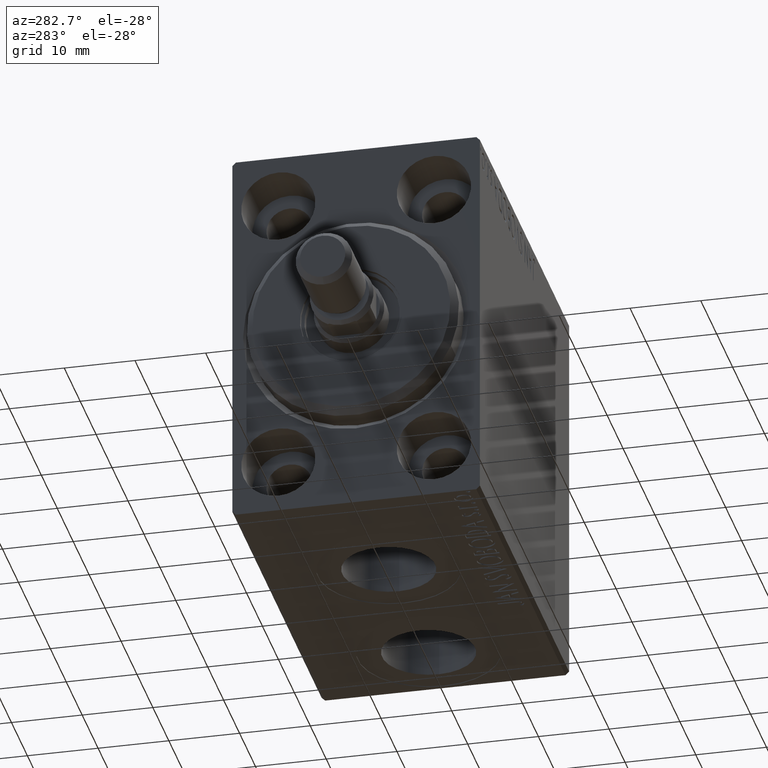
[diagram: clean part render]
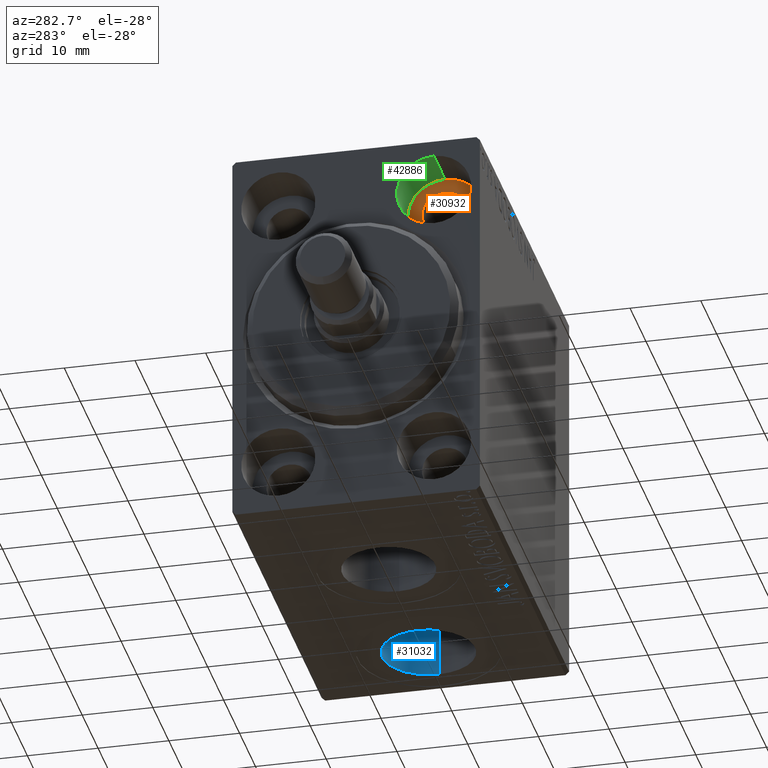
[diagram: same view with three faces highlighted in distinct colors, each labeled with its STEP entity id]
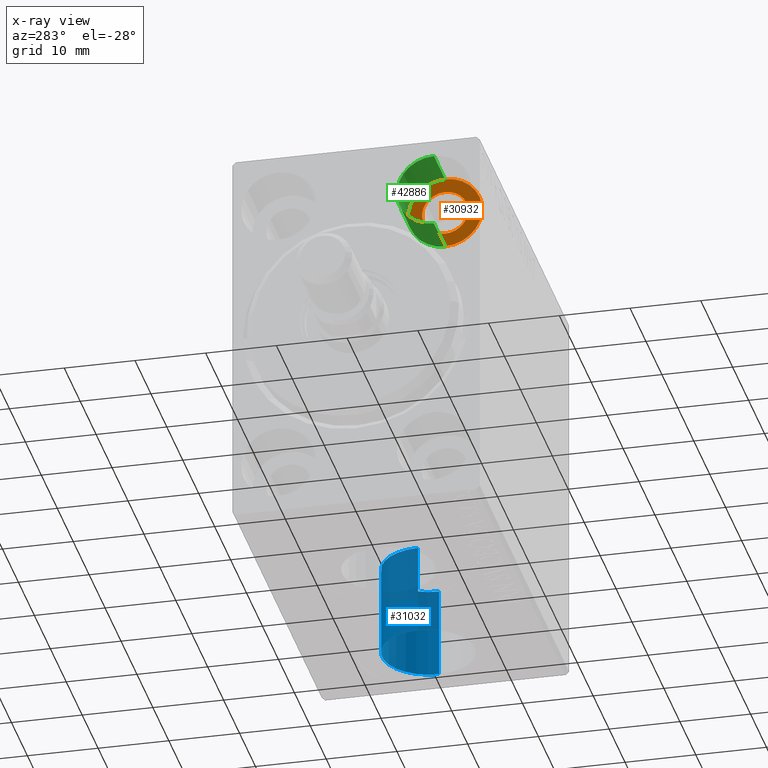
[diagram: x-ray of the same camera — body ghosted, the three highlighted faces saturated]
A machine part, auxiliary view with three faces highlighted in distinct colors.
The next image is the same camera in x-ray (body ghosted, the three faces saturated) — at least one of them is partly hidden behind the body in this view.
Their STEP definitions:

[orange] entity #30932 — the highlighted planar face has unit normal (-1, 0, 0).
#2447 = DIRECTION ( 'NONE',  ( -1.000000000000000000, 0.000000000000000000, 0.000000000000000000 ) ) ;
#3005 = PLANE ( 'NONE',  #9919 ) ;
#3781 = EDGE_LOOP ( 'NONE', ( #32650, #44393 ) ) ;
#5532 = DIRECTION ( 'NONE',  ( -1.000000000000000000, 0.000000000000000000, 0.000000000000000000 ) ) ;
#5815 = EDGE_LOOP ( 'NONE', ( #31413, #21490 ) ) ;
#7081 = FACE_BOUND ( 'NONE', #3781, .T. ) ;
#7377 = CIRCLE ( 'NONE', #44009, 3.249999999999999556 ) ;
#9919 = AXIS2_PLACEMENT_3D ( 'NONE', #30485, #37460, #17865 ) ;
#13901 = VERTEX_POINT ( 'NONE', #16427 ) ;
#16427 = CARTESIAN_POINT ( 'NONE',  ( 6.999999999999999112, -11.00000000000000355, 23.25000000000000000 ) ) ;
#17865 = DIRECTION ( 'NONE',  ( 0.000000000000000000, 0.000000000000000000, 1.000000000000000000 ) ) ;
#18636 = CIRCLE ( 'NONE', #21515, 3.249999999999999556 ) ;
#19031 = CARTESIAN_POINT ( 'NONE',  ( 7.000000000000000000, -11.00000000000000355, 20.00000000000000000 ) ) ;
#20898 = DIRECTION ( 'NONE',  ( 0.000000000000000000, 0.000000000000000000, 1.000000000000000000 ) ) ;
#21320 = CIRCLE ( 'NONE', #41435, 5.250000000000000888 ) ;
#21490 = ORIENTED_EDGE ( 'NONE', *, *, #42193, .T. ) ;
#21515 = AXIS2_PLACEMENT_3D ( 'NONE', #33960, #2447, #37340 ) ;
#21611 = CARTESIAN_POINT ( 'NONE',  ( 7.000000000000000000, -11.00000000000000355, 20.00000000000000000 ) ) ;
#23288 = EDGE_CURVE ( 'NONE', #28301, #24922, #21320, .T. ) ;
#24010 = CARTESIAN_POINT ( 'NONE',  ( 7.000000000000000000, -11.00000000000000355, 25.25000000000000000 ) ) ;
#24762 = DIRECTION ( 'NONE',  ( 0.000000000000000000, 0.000000000000000000, 1.000000000000000000 ) ) ;
#24922 = VERTEX_POINT ( 'NONE', #29789 ) ;
#26447 = CARTESIAN_POINT ( 'NONE',  ( 6.999999999999999112, -11.00000000000000355, 16.75000000000000000 ) ) ;
#27431 = CARTESIAN_POINT ( 'NONE',  ( 6.999999999999999112, -11.00000000000000355, 20.00000000000000000 ) ) ;
#28301 = VERTEX_POINT ( 'NONE', #24010 ) ;
#29386 = DIRECTION ( 'NONE',  ( 0.000000000000000000, 0.000000000000000000, 1.000000000000000000 ) ) ;
#29789 = CARTESIAN_POINT ( 'NONE',  ( 7.000000000000000000, -11.00000000000000355, 14.75000000000000000 ) ) ;
#30485 = CARTESIAN_POINT ( 'NONE',  ( 7.000000000000000000, 0.000000000000000000, 0.000000000000000000 ) ) ;
#30809 = VERTEX_POINT ( 'NONE', #26447 ) ;
#30932 = ADVANCED_FACE ( 'NONE', ( #7081, #33863 ), #3005, .T. ) ;
#31256 = DIRECTION ( 'NONE',  ( -1.000000000000000000, 0.000000000000000000, 0.000000000000000000 ) ) ;
#31413 = ORIENTED_EDGE ( 'NONE', *, *, #23288, .T. ) ;
#32650 = ORIENTED_EDGE ( 'NONE', *, *, #40176, .F. ) ;
#33863 = FACE_OUTER_BOUND ( 'NONE', #5815, .T. ) ;
#33960 = CARTESIAN_POINT ( 'NONE',  ( 6.999999999999999112, -11.00000000000000355, 20.00000000000000000 ) ) ;
#34553 = EDGE_CURVE ( 'NONE', #30809, #13901, #18636, .T. ) ;
#35936 = CIRCLE ( 'NONE', #41670, 5.250000000000000888 ) ;
#37340 = DIRECTION ( 'NONE',  ( 0.000000000000000000, 0.000000000000000000, 1.000000000000000000 ) ) ;
#37460 = DIRECTION ( 'NONE',  ( -1.000000000000000000, 0.000000000000000000, 0.000000000000000000 ) ) ;
#40176 = EDGE_CURVE ( 'NONE', #13901, #30809, #7377, .T. ) ;
#41426 = DIRECTION ( 'NONE',  ( -1.000000000000000000, 0.000000000000000000, 0.000000000000000000 ) ) ;
#41435 = AXIS2_PLACEMENT_3D ( 'NONE', #19031, #5532, #29386 ) ;
#41670 = AXIS2_PLACEMENT_3D ( 'NONE', #21611, #41426, #24762 ) ;
#42193 = EDGE_CURVE ( 'NONE', #24922, #28301, #35936, .T. ) ;
#44009 = AXIS2_PLACEMENT_3D ( 'NONE', #27431, #31256, #20898 ) ;
#44393 = ORIENTED_EDGE ( 'NONE', *, *, #34553, .F. ) ;

[blue] entity #31032 — the highlighted cylindrical surface (partial cylindrical patch) has radius 6.58 mm, axis along (-0, -0, -1).
#534 = AXIS2_PLACEMENT_3D ( 'NONE', #22750, #5436, #32451 ) ;
#1003 = CARTESIAN_POINT ( 'NONE',  ( 38.91999999999999460, -5.788603209277299718E-15, -14.50000000000000355 ) ) ;
#5436 = DIRECTION ( 'NONE',  ( 0.000000000000000000, 0.000000000000000000, -1.000000000000000000 ) ) ;
#6830 = VERTEX_POINT ( 'NONE', #42391 ) ;
#7019 = CIRCLE ( 'NONE', #534, 6.580000000000002736 ) ;
#8244 = CIRCLE ( 'NONE', #31247, 6.580000000000002736 ) ;
#8406 = DIRECTION ( 'NONE',  ( -0.000000000000000000, -0.000000000000000000, -1.000000000000000000 ) ) ;
#8826 = EDGE_CURVE ( 'NONE', #16682, #34069, #19582, .T. ) ;
#12556 = CARTESIAN_POINT ( 'NONE',  ( 45.50000000000000000, -5.788603209277299718E-15, -14.50000000000000355 ) ) ;
#13277 = EDGE_CURVE ( 'NONE', #33841, #16682, #8244, .T. ) ;
#13294 = EDGE_CURVE ( 'NONE', #33841, #6830, #37963, .T. ) ;
#15301 = VECTOR ( 'NONE', #33316, 1000.000000000000000 ) ;
#16392 = AXIS2_PLACEMENT_3D ( 'NONE', #28663, #8406, #17648 ) ;
#16682 = VERTEX_POINT ( 'NONE', #21246 ) ;
#17514 = EDGE_LOOP ( 'NONE', ( #30621, #24147, #35455, #42848 ) ) ;
#17648 = DIRECTION ( 'NONE',  ( -1.000000000000000000, 0.000000000000000000, 0.000000000000000000 ) ) ;
#19582 = LINE ( 'NONE', #44088, #15301 ) ;
#21246 = CARTESIAN_POINT ( 'NONE',  ( 52.07999999999999829, -4.982785615438341465E-15, -14.50000000000000355 ) ) ;
#22750 = CARTESIAN_POINT ( 'NONE',  ( 45.50000000000000000, -5.788603209277299718E-15, -27.40000000000000568 ) ) ;
#24147 = ORIENTED_EDGE ( 'NONE', *, *, #13277, .F. ) ;
#25278 = CYLINDRICAL_SURFACE ( 'NONE', #16392, 6.580000000000002736 ) ;
#26360 = EDGE_CURVE ( 'NONE', #6830, #34069, #7019, .T. ) ;
#28663 = CARTESIAN_POINT ( 'NONE',  ( 45.50000000000000000, -5.788603209277299718E-15, -14.50000000000000355 ) ) ;
#29651 = DIRECTION ( 'NONE',  ( -1.000000000000000000, 0.000000000000000000, 0.000000000000000000 ) ) ;
#30621 = ORIENTED_EDGE ( 'NONE', *, *, #8826, .F. ) ;
#31032 = ADVANCED_FACE ( 'NONE', ( #39229 ), #25278, .F. ) ;
#31247 = AXIS2_PLACEMENT_3D ( 'NONE', #12556, #33036, #29651 ) ;
#32451 = DIRECTION ( 'NONE',  ( -1.000000000000000000, 0.000000000000000000, 0.000000000000000000 ) ) ;
#33036 = DIRECTION ( 'NONE',  ( 0.000000000000000000, 0.000000000000000000, -1.000000000000000000 ) ) ;
#33316 = DIRECTION ( 'NONE',  ( -0.000000000000000000, -0.000000000000000000, -1.000000000000000000 ) ) ;
#33841 = VERTEX_POINT ( 'NONE', #1003 ) ;
#34069 = VERTEX_POINT ( 'NONE', #41481 ) ;
#35455 = ORIENTED_EDGE ( 'NONE', *, *, #13294, .T. ) ;
#37702 = VECTOR ( 'NONE', #41325, 1000.000000000000000 ) ;
#37963 = LINE ( 'NONE', #44476, #37702 ) ;
#39229 = FACE_OUTER_BOUND ( 'NONE', #17514, .T. ) ;
#41325 = DIRECTION ( 'NONE',  ( -0.000000000000000000, -0.000000000000000000, -1.000000000000000000 ) ) ;
#41481 = CARTESIAN_POINT ( 'NONE',  ( 52.07999999999999829, -4.982785615438341465E-15, -27.40000000000000568 ) ) ;
#42391 = CARTESIAN_POINT ( 'NONE',  ( 38.91999999999999460, -5.788603209277299718E-15, -27.40000000000000568 ) ) ;
#42848 = ORIENTED_EDGE ( 'NONE', *, *, #26360, .T. ) ;
#44088 = CARTESIAN_POINT ( 'NONE',  ( 52.07999999999999829, -4.982785615438341465E-15, -14.50000000000000355 ) ) ;
#44476 = CARTESIAN_POINT ( 'NONE',  ( 38.91999999999999460, -5.788603209277299718E-15, -14.50000000000000355 ) ) ;

[green] entity #42886 — the highlighted cylindrical surface (partial cylindrical patch) has radius 5.25 mm, axis along (-1, -0, -0).
#3715 = ORIENTED_EDGE ( 'NONE', *, *, #23288, .F. ) ;
#5268 = LINE ( 'NONE', #9088, #24640 ) ;
#5532 = DIRECTION ( 'NONE',  ( -1.000000000000000000, 0.000000000000000000, 0.000000000000000000 ) ) ;
#6878 = CARTESIAN_POINT ( 'NONE',  ( 0.000000000000000000, -11.00000000000000355, 14.75000000000000000 ) ) ;
#7798 = EDGE_CURVE ( 'NONE', #24922, #16632, #5268, .T. ) ;
#8897 = DIRECTION ( 'NONE',  ( 0.000000000000000000, 0.000000000000000000, 1.000000000000000000 ) ) ;
#9088 = CARTESIAN_POINT ( 'NONE',  ( 7.000000000000000000, -11.00000000000000355, 14.75000000000000000 ) ) ;
#9850 = CARTESIAN_POINT ( 'NONE',  ( 0.000000000000000000, -11.00000000000000355, 20.00000000000000000 ) ) ;
#10404 = VERTEX_POINT ( 'NONE', #15396 ) ;
#10674 = CIRCLE ( 'NONE', #17863, 5.250000000000000888 ) ;
#15215 = FACE_OUTER_BOUND ( 'NONE', #25641, .T. ) ;
#15396 = CARTESIAN_POINT ( 'NONE',  ( 0.000000000000000000, -11.00000000000000355, 25.25000000000000000 ) ) ;
#16391 = DIRECTION ( 'NONE',  ( -1.000000000000000000, 0.000000000000000000, 0.000000000000000000 ) ) ;
#16632 = VERTEX_POINT ( 'NONE', #6878 ) ;
#17863 = AXIS2_PLACEMENT_3D ( 'NONE', #9850, #16391, #19976 ) ;
#18140 = DIRECTION ( 'NONE',  ( -1.000000000000000000, -0.000000000000000000, -0.000000000000000000 ) ) ;
#19031 = CARTESIAN_POINT ( 'NONE',  ( 7.000000000000000000, -11.00000000000000355, 20.00000000000000000 ) ) ;
#19976 = DIRECTION ( 'NONE',  ( 0.000000000000000000, 0.000000000000000000, 1.000000000000000000 ) ) ;
#20349 = EDGE_CURVE ( 'NONE', #28301, #10404, #39284, .T. ) ;
#21320 = CIRCLE ( 'NONE', #41435, 5.250000000000000888 ) ;
#22130 = ORIENTED_EDGE ( 'NONE', *, *, #7798, .F. ) ;
#23288 = EDGE_CURVE ( 'NONE', #28301, #24922, #21320, .T. ) ;
#24010 = CARTESIAN_POINT ( 'NONE',  ( 7.000000000000000000, -11.00000000000000355, 25.25000000000000000 ) ) ;
#24640 = VECTOR ( 'NONE', #42401, 1000.000000000000000 ) ;
#24877 = ORIENTED_EDGE ( 'NONE', *, *, #20349, .T. ) ;
#24922 = VERTEX_POINT ( 'NONE', #29789 ) ;
#25590 = ORIENTED_EDGE ( 'NONE', *, *, #32366, .T. ) ;
#25641 = EDGE_LOOP ( 'NONE', ( #22130, #3715, #24877, #25590 ) ) ;
#28301 = VERTEX_POINT ( 'NONE', #24010 ) ;
#28940 = CARTESIAN_POINT ( 'NONE',  ( 7.000000000000000000, -11.00000000000000355, 20.00000000000000000 ) ) ;
#29380 = DIRECTION ( 'NONE',  ( -1.000000000000000000, -0.000000000000000000, -0.000000000000000000 ) ) ;
#29386 = DIRECTION ( 'NONE',  ( 0.000000000000000000, 0.000000000000000000, 1.000000000000000000 ) ) ;
#29789 = CARTESIAN_POINT ( 'NONE',  ( 7.000000000000000000, -11.00000000000000355, 14.75000000000000000 ) ) ;
#32366 = EDGE_CURVE ( 'NONE', #10404, #16632, #10674, .T. ) ;
#34802 = CARTESIAN_POINT ( 'NONE',  ( 7.000000000000000000, -11.00000000000000355, 25.25000000000000000 ) ) ;
#34889 = VECTOR ( 'NONE', #18140, 1000.000000000000000 ) ;
#37416 = AXIS2_PLACEMENT_3D ( 'NONE', #28940, #29380, #8897 ) ;
#39284 = LINE ( 'NONE', #34802, #34889 ) ;
#41435 = AXIS2_PLACEMENT_3D ( 'NONE', #19031, #5532, #29386 ) ;
#42401 = DIRECTION ( 'NONE',  ( -1.000000000000000000, -0.000000000000000000, -0.000000000000000000 ) ) ;
#42652 = CYLINDRICAL_SURFACE ( 'NONE', #37416, 5.250000000000000888 ) ;
#42886 = ADVANCED_FACE ( 'NONE', ( #15215 ), #42652, .F. ) ;